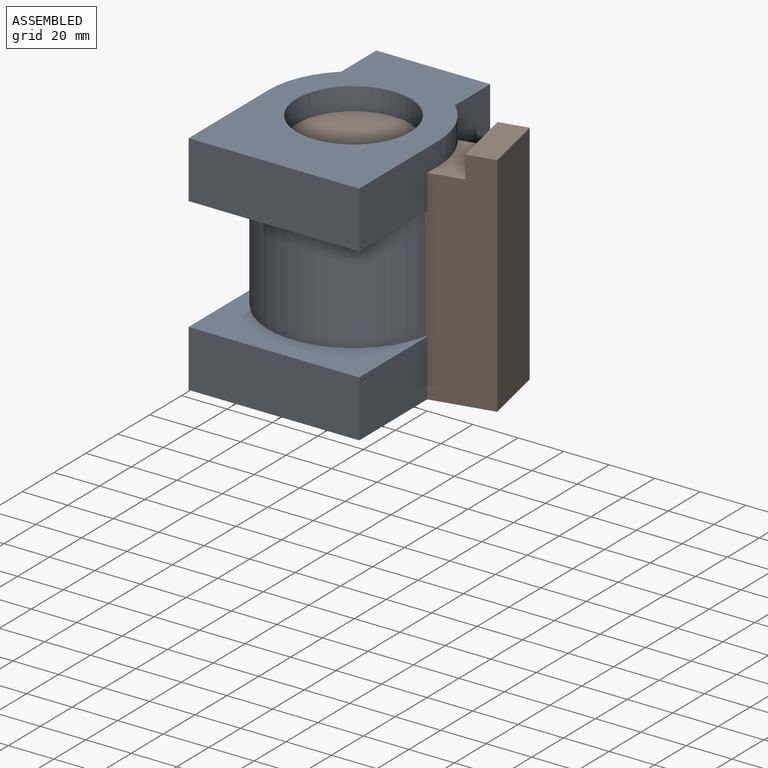
[diagram: assembled view]
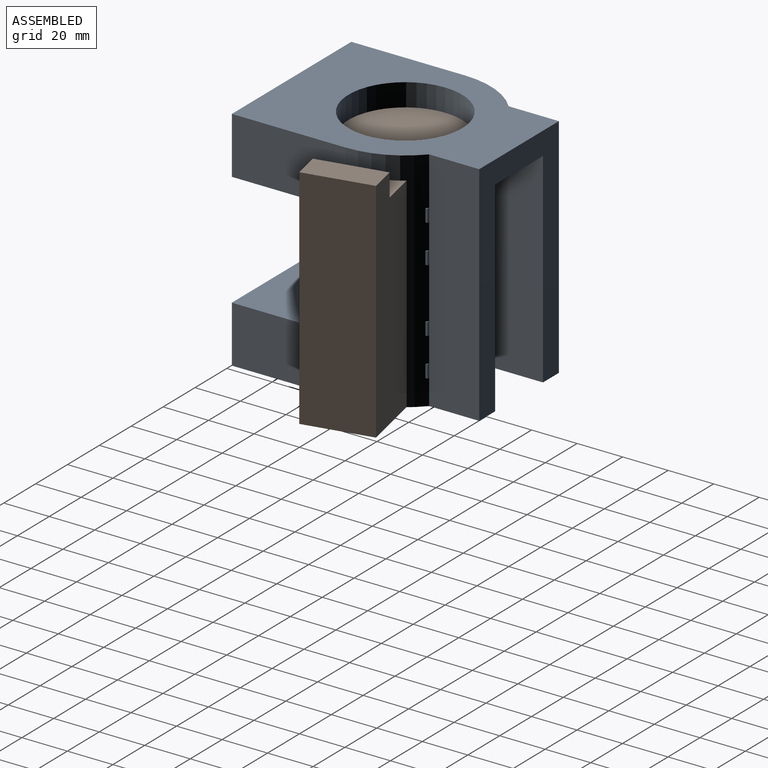
[diagram: assembled view, second angle]
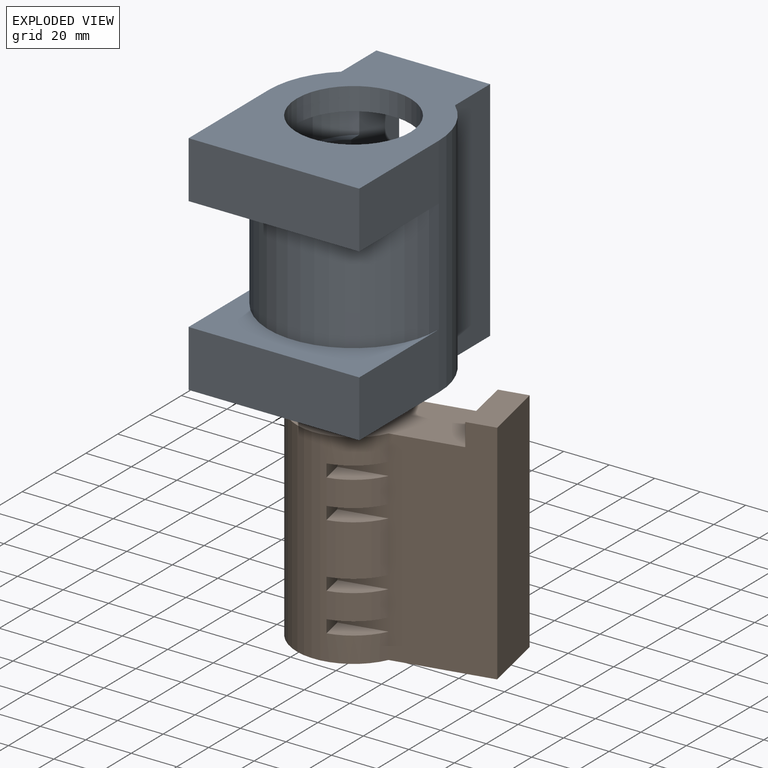
[diagram: exploded view]
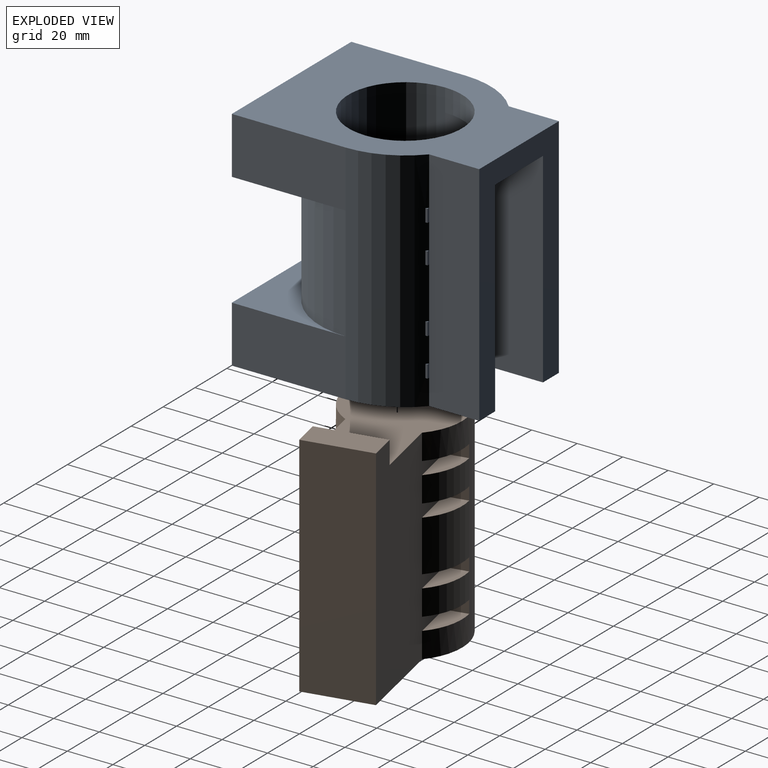
[diagram: exploded view, second angle]
ASSEMBLY  parts=2 mates=2
PART A: 100 faces, bbox 75x100x100 mm
  f0: plane 25x10mm, normal (0,0,-1), area 50.8mm2, adj f6,f7,f14,f15,f17
  f1: plane 25x10mm, normal (0,0,1), area 50.8mm2, adj f6,f7,f24,f25,f26
  f2: plane 5.63x0.93mm, normal (1,0,0), area 5.2mm2, adj f4,f5,f13,f16
  f3: plane 100x50mm, normal (0,1,0), area 2300mm2, adj f6,f12,f51,f52,f56,f57,f63
  f4: plane 1x0.93mm, normal (0,0,-1), area 0.5mm2, adj f2,f13,f16
  f5: plane 1x0.93mm, normal (0,0,1), area 0.5mm2, adj f2,f13,f16
  f6: plane 90x30mm, normal (-1,0,0), area 2362.5mm2, adj f0,f1,f3,f7,f9,f10,f11,f14
  f7: cylinder r=25mm len=20mm, axis (0,0,-1), area 130.4mm2, adj f0,f1,f6,f8
  f8: cylinder r=25mm len=100mm, axis (0,0,-1), area 9161mm2, adj f7,f9,f10,f11,f17,f26,f35,f45
  f9: cylinder r=25mm len=20mm, axis (0,0,-1), area 130.4mm2, adj f6,f8,f19,f21
  f10: cylinder r=25mm len=20mm, axis (0,0,-1), area 130.4mm2, adj f6,f8,f70,f71
  f11: cylinder r=25mm len=20mm, axis (0,0,-1), area 130.4mm2, adj f6,f8,f28,f30
  f12: plane 100x22.05mm, normal (1,0,0), area 2204.9mm2, adj f3,f13,f16,f23,f32,f51,f56,f99
  f13: plane 5.63x1mm, normal (0,1,0), area 5.6mm2, adj f2,f4,f5,f12
  f14: cylinder r=25mm len=15mm, axis (0,0,-1), area 204.2mm2, adj f0,f6,f15,f30
  f15: plane 11.25x0.51mm, normal (0,-1,0), area 5.7mm2, adj f0,f14,f17,f30
  f16: cylinder r=37.5mm len=100mm, axis (0,0,-1), area 12137.1mm2, adj f2,f4,f5,f12,f18,f20,f22,f27
  f17: plane 11.25x10mm, normal (-1,0,0), area 112.5mm2, adj f0,f8,f15,f30
  f18: plane 1x0.93mm, normal (0,0,1), area 0.5mm2, adj f16,f22,f23
  f19: plane 25x10mm, normal (0,0,1), area 50.8mm2, adj f6,f9,f36,f49,f50
  f20: plane 1x0.93mm, normal (0,0,-1), area 0.5mm2, adj f16,f22,f23
  f21: plane 25x10mm, normal (0,0,-1), area 50.8mm2, adj f6,f9,f24,f25,f26
  f22: plane 5.63x0.93mm, normal (1,0,0), area 5.2mm2, adj f16,f18,f20,f23
  f23: plane 5.63x1mm, normal (0,1,0), area 5.6mm2, adj f12,f18,f20,f22
  f24: cylinder r=25mm len=22.5mm, axis (0,0,-1), area 408.3mm2, adj f1,f6,f21,f25
  f25: plane 22.5x0.51mm, normal (0,-1,0), area 11.4mm2, adj f1,f21,f24,f26
  f26: plane 22.5x10mm, normal (-1,0,0), area 225mm2, adj f1,f8,f21,f25
  f27: plane 1x0.93mm, normal (0,0,-1), area 0.5mm2, adj f16,f31,f32
  f28: plane 25x10mm, normal (0,0,-1), area 50.8mm2, adj f6,f11,f33,f34,f35
  f29: plane 1x0.93mm, normal (0,0,1), area 0.5mm2, adj f16,f31,f32
  f30: plane 25x10mm, normal (0,0,1), area 50.8mm2, adj f6,f11,f14,f15,f17
  f31: plane 5.63x0.93mm, normal (1,0,0), area 5.2mm2, adj f16,f27,f29,f32
  f32: plane 5.63x1mm, normal (0,1,0), area 5.6mm2, adj f12,f27,f29,f31
  f33: cylinder r=25mm len=15mm, axis (0,0,-1), area 204.2mm2, adj f6,f28,f34,f51
  f34: plane 11.25x0.51mm, normal (0,-1,0), area 5.7mm2, adj f28,f33,f35,f51
  f35: plane 11.25x10mm, normal (-1,0,0), area 112.5mm2, adj f8,f28,f34,f51
  f36: cylinder r=25mm len=15mm, axis (0,0,-1), area 204.2mm2, adj f6,f19,f50,f71
  f37: cylinder r=25mm len=22.5mm, axis (0,0,-1), area 408.3mm2, adj f41,f52,f75,f76
  f38: cylinder r=25mm len=15mm, axis (0,0,-1), area 204.2mm2, adj f42,f52,f73,f74
  f39: cylinder r=25mm len=15mm, axis (0,0,-1), area 204.2mm2, adj f43,f51,f52,f79
  f40: cylinder r=25mm len=15mm, axis (0,0,-1), area 204.2mm2, adj f44,f52,f77,f78
  f41: plane 22.5x0.51mm, normal (0,-1,0), area 11.4mm2, adj f37,f47,f75,f76
  f42: plane 11.25x0.51mm, normal (0,-1,0), area 5.7mm2, adj f38,f46,f73,f74
  f43: plane 11.25x0.51mm, normal (0,-1,0), area 5.7mm2, adj f39,f51,f67,f79
  f44: plane 11.25x0.51mm, normal (0,-1,0), area 5.7mm2, adj f40,f45,f77,f78
  f45: plane 11.25x10mm, normal (1,0,0), area 112.5mm2, adj f8,f44,f77,f78
  f46: plane 11.25x10mm, normal (1,0,0), area 112.5mm2, adj f8,f42,f73,f74
  f47: plane 22.5x10mm, normal (1,0,0), area 225mm2, adj f8,f41,f75,f76
  f48: plane 11.25x10mm, normal (1,0,0), area 112.5mm2, adj f8,f63,f66,f72
  f49: plane 11.25x10mm, normal (-1,0,0), area 112.5mm2, adj f8,f19,f50,f71
  f50: plane 11.25x0.51mm, normal (0,-1,0), area 5.7mm2, adj f19,f36,f49,f71
  f51: plane 100x75mm, normal (0,0,-1), area 3871mm2, adj f3,f6,f8,f12,f16,f33,f34,f35
  f52: plane 90x30mm, normal (1,0,0), area 2362.5mm2, adj f3,f8,f37,f38,f39,f40,f51,f63
  f53: plane 75x25mm, normal (0,-1,0), area 1875mm2, adj f51,f54,f55,f62
  f54: plane 50x25mm, normal (1,0,0), area 1250mm2, adj f16,f51,f53,f62
  f55: plane 50x25mm, normal (-1,0,0), area 1250mm2, adj f16,f51,f53,f62
  f56: plane 100x75mm, normal (0,0,1), area 4770.5mm2, adj f3,f8,f12,f16,f57,f58,f59,f60
  f57: plane 100x22.05mm, normal (-1,0,0), area 2204.9mm2, adj f3,f16,f51,f56,f83,f87,f91,f95
  f58: plane 75x25mm, normal (0,-1,0), area 1875mm2, adj f56,f59,f60,f61
  f59: plane 50x25mm, normal (1,0,0), area 1250mm2, adj f16,f56,f58,f61
  f60: plane 50x25mm, normal (-1,0,0), area 1250mm2, adj f16,f56,f58,f61
  f61: plane 75x50mm, normal (0,0,-1), area 1541.1mm2, adj f16,f58,f59,f60
  f62: plane 75x50mm, normal (0,0,1), area 1541.1mm2, adj f16,f53,f54,f55
  f63: plane 50x50mm, normal (0,0,-1), area 899.5mm2, adj f3,f6,f8,f48,f52,f64,f65,f66
  f64: cylinder r=25mm len=15mm, axis (0,0,-1), area 204.2mm2, adj f6,f63,f69,f70
  f65: cylinder r=25mm len=15mm, axis (0,0,-1), area 204.2mm2, adj f52,f63,f66,f72
  f66: plane 11.25x0.51mm, normal (0,-1,0), area 5.7mm2, adj f48,f63,f65,f72
  f67: plane 11.25x10mm, normal (1,0,0), area 112.5mm2, adj f8,f43,f51,f79
  f68: plane 11.25x10mm, normal (-1,0,0), area 112.5mm2, adj f8,f63,f69,f70
  f69: plane 11.25x0.51mm, normal (0,-1,0), area 5.7mm2, adj f63,f64,f68,f70
  f70: plane 25x10mm, normal (0,0,1), area 50.8mm2, adj f6,f10,f64,f68,f69
  f71: plane 25x10mm, normal (0,0,-1), area 50.8mm2, adj f6,f10,f36,f49,f50
  f72: plane 25x10mm, normal (0,0,1), area 50.8mm2, adj f8,f48,f52,f65,f66
  f73: plane 25x10mm, normal (0,0,-1), area 50.8mm2, adj f8,f38,f42,f46,f52
  f74: plane 25x10mm, normal (0,0,1), area 50.8mm2, adj f8,f38,f42,f46,f52
  f75: plane 25x10mm, normal (0,0,-1), area 50.8mm2, adj f8,f37,f41,f47,f52
  f76: plane 25x10mm, normal (0,0,1), area 50.8mm2, adj f8,f37,f41,f47,f52
  f77: plane 25x10mm, normal (0,0,-1), area 50.8mm2, adj f8,f40,f44,f45,f52
  f78: plane 25x10mm, normal (0,0,1), area 50.8mm2, adj f8,f40,f44,f45,f52
  f79: plane 25x10mm, normal (0,0,-1), area 50.8mm2, adj f8,f39,f43,f52,f67
  f80: plane 5.63x0.93mm, normal (-1,0,0), area 5.2mm2, adj f16,f81,f82,f83
  f81: plane 1x0.93mm, normal (0,0,-1), area 0.5mm2, adj f16,f80,f83
  f82: plane 1x0.93mm, normal (0,0,1), area 0.5mm2, adj f16,f80,f83
  f83: plane 5.63x1mm, normal (0,1,0), area 5.6mm2, adj f57,f80,f81,f82
  f84: plane 5.63x0.93mm, normal (-1,0,0), area 5.2mm2, adj f16,f85,f86,f87
  f85: plane 1x0.93mm, normal (0,0,-1), area 0.5mm2, adj f16,f84,f87
  f86: plane 1x0.93mm, normal (0,0,1), area 0.5mm2, adj f16,f84,f87
  f87: plane 5.63x1mm, normal (0,1,0), area 5.6mm2, adj f57,f84,f85,f86
  f88: plane 5.63x0.93mm, normal (-1,0,0), area 5.2mm2, adj f16,f89,f90,f91
  f89: plane 1x0.93mm, normal (0,0,-1), area 0.5mm2, adj f16,f88,f91
  f90: plane 1x0.93mm, normal (0,0,1), area 0.5mm2, adj f16,f88,f91
  f91: plane 5.63x1mm, normal (0,1,0), area 5.6mm2, adj f57,f88,f89,f90
  f92: plane 5.63x0.93mm, normal (-1,0,0), area 5.2mm2, adj f16,f93,f94,f95
  f93: plane 1x0.93mm, normal (0,0,-1), area 0.5mm2, adj f16,f92,f95
  f94: plane 1x0.93mm, normal (0,0,1), area 0.5mm2, adj f16,f92,f95
  f95: plane 5.63x1mm, normal (0,1,0), area 5.6mm2, adj f57,f92,f93,f94
  f96: plane 1x0.93mm, normal (0,0,1), area 0.5mm2, adj f16,f98,f99
  f97: plane 1x0.93mm, normal (0,0,-1), area 0.5mm2, adj f16,f98,f99
  f98: plane 5.63x0.93mm, normal (1,0,0), area 5.2mm2, adj f16,f96,f97,f99
  f99: plane 5.63x1mm, normal (0,1,0), area 5.6mm2, adj f12,f96,f97,f98
PART B: 32 faces, bbox 50x87.5x100 mm
  f0: cylinder r=25mm len=90mm, axis (0,0,1), area 10198.2mm2, adj f2,f3,f4,f5,f8,f9,f10,f11
  f1: plane 100x30mm, normal (0,1,0), area 3000mm2, adj f2,f3,f5,f7
  f2: plane 100x62.5mm, normal (-1,0,0), area 4400mm2, adj f0,f1,f4,f5,f6,f7,f20,f21
  f3: plane 100x62.5mm, normal (1,0,0), area 4400mm2, adj f0,f1,f4,f5,f6,f7,f8,f9
  f4: plane 75x50mm, normal (0,0,-1), area 2761.3mm2, adj f0,f2,f3,f6
  f5: plane 87.5x50mm, normal (0,0,1), area 3136.3mm2, adj f0,f1,f2,f3
  f6: plane 30x10mm, normal (0,-1,0), area 300mm2, adj f2,f3,f4,f7
  f7: plane 30x12.5mm, normal (0,0,-1), area 375mm2, adj f1,f2,f3,f6
  f8: plane 20x10mm, normal (0,0,-1), area 139.8mm2, adj f0,f3,f9
  f9: plane 10x5.63mm, normal (0,1,0), area 56.3mm2, adj f0,f3,f8,f10
  f10: plane 20x10mm, normal (0,0,1), area 139.8mm2, adj f0,f3,f9
  f11: plane 20x10mm, normal (0,0,-1), area 139.8mm2, adj f0,f3,f12
  f12: plane 10x5.63mm, normal (0,1,0), area 56.3mm2, adj f0,f3,f11,f13
  f13: plane 20x10mm, normal (0,0,1), area 139.8mm2, adj f0,f3,f12
  f14: plane 20x10mm, normal (0,0,1), area 139.8mm2, adj f0,f3,f16
  f15: plane 20x10mm, normal (0,0,-1), area 139.8mm2, adj f0,f3,f16
  f16: plane 10x5.63mm, normal (0,1,0), area 56.3mm2, adj f0,f3,f14,f15
  f17: plane 20x10mm, normal (0,0,-1), area 139.8mm2, adj f0,f3,f18
  f18: plane 10x5.63mm, normal (0,1,0), area 56.3mm2, adj f0,f3,f17,f19
  f19: plane 20x10mm, normal (0,0,1), area 139.8mm2, adj f0,f3,f18
  f20: plane 10x5.63mm, normal (0,1,0), area 56.2mm2, adj f0,f2,f21,f22
  f21: plane 20x10mm, normal (0,0,1), area 139.8mm2, adj f0,f2,f20
  f22: plane 20x10mm, normal (0,0,-1), area 139.8mm2, adj f0,f2,f20
  f23: plane 10x5.63mm, normal (0,1,0), area 56.3mm2, adj f0,f2,f24,f25
  f24: plane 20x10mm, normal (0,0,-1), area 139.8mm2, adj f0,f2,f23
  f25: plane 20x10mm, normal (0,0,1), area 139.8mm2, adj f0,f2,f23
  f26: plane 10x5.63mm, normal (0,1,0), area 56.2mm2, adj f0,f2,f27,f28
  f27: plane 20x10mm, normal (0,0,-1), area 139.8mm2, adj f0,f2,f26
  f28: plane 20x10mm, normal (0,0,1), area 139.8mm2, adj f0,f2,f26
  f29: plane 20x10mm, normal (0,0,-1), area 139.8mm2, adj f0,f2,f30
  f30: plane 10x5.63mm, normal (0,1,0), area 56.2mm2, adj f0,f2,f29,f31
  f31: plane 20x10mm, normal (0,0,1), area 139.8mm2, adj f0,f2,f30
PLACE A t=(-129.18,-35.89,-82.14)mm fixed
PLACE B rot(axis=(0.63,0.78,0),180deg) t=(-150.08,61.9,-82.14)mm
MATE pin_slot A.f7 <-> B.f0  axis (0,0,-1) through (-129.18,-35.89,-82.14)mm
MATE ball B.f0 <-> A.f7  axis (0,0,-1) through (-129.18,-35.89,-82.14)mm
